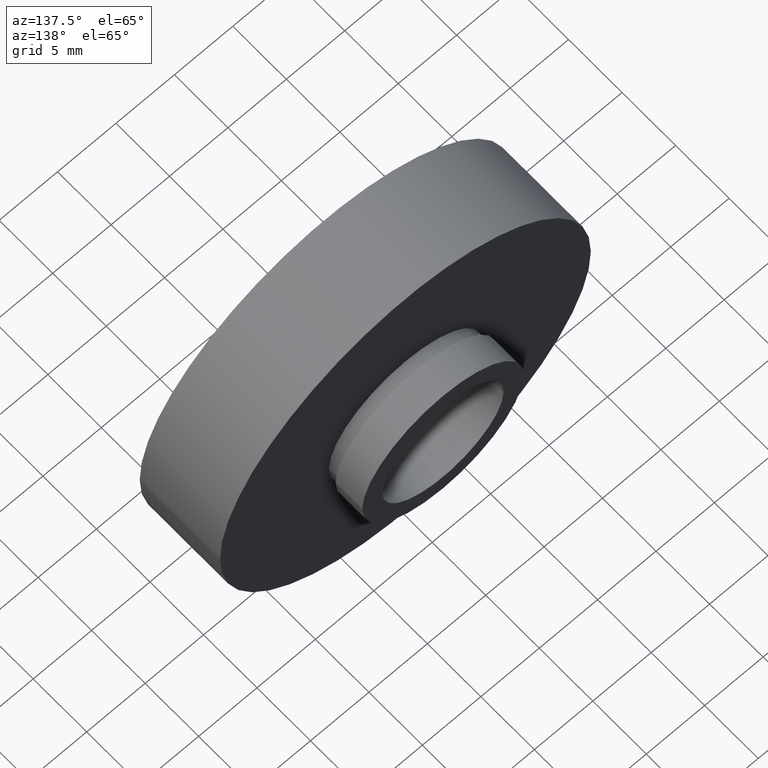
[diagram: clean part render]
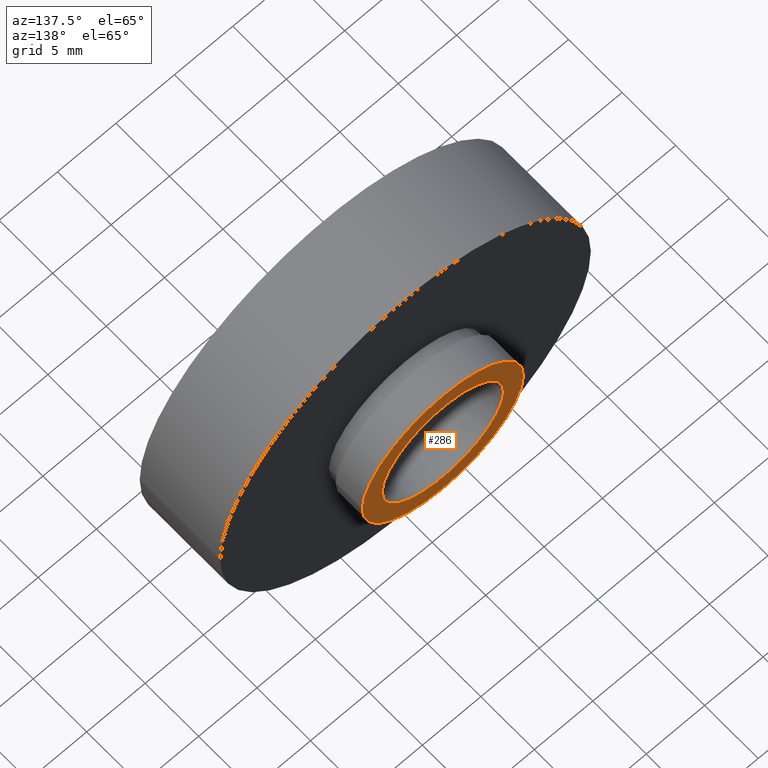
[diagram: same view with one face highlighted and labeled with its STEP entity id]
A machine part, auxiliary view. The second image highlights one B-rep face of the part: STEP entity #286.
In plain terms, the highlighted planar face has unit normal (0, -1, 0).
Its self-contained STEP definition (entity closure, byte-faithful):
#4 = CARTESIAN_POINT ( 'NONE',  ( 7.208293393765501500E-016, 10.99999999999999600, 0.0000000000000000000 ) ) ;
#16 = CARTESIAN_POINT ( 'NONE',  ( -5.200000000000000200, 11.00000000000000000, 0.0000000000000000000 ) ) ;
#31 = FACE_OUTER_BOUND ( 'NONE', #416, .T. ) ;
#53 = EDGE_LOOP ( 'NONE', ( #105, #65 ) ) ;
#65 = ORIENTED_EDGE ( 'NONE', *, *, #579, .F. ) ;
#68 = AXIS2_PLACEMENT_3D ( 'NONE', #397, #290, #578 ) ;
#84 = AXIS2_PLACEMENT_3D ( 'NONE', #363, #509, #219 ) ;
#85 = DIRECTION ( 'NONE',  ( 1.224646799147351000E-016, -1.000000000000000000, 0.0000000000000000000 ) ) ;
#105 = ORIENTED_EDGE ( 'NONE', *, *, #234, .F. ) ;
#119 = FACE_BOUND ( 'NONE', #53, .T. ) ;
#137 = EDGE_CURVE ( 'NONE', #360, #387, #141, .T. ) ;
#141 = CIRCLE ( 'NONE', #474, 6.900000000000001200 ) ;
#151 = DIRECTION ( 'NONE',  ( -1.000000000000000000, 0.0000000000000000000, 0.0000000000000000000 ) ) ;
#165 = AXIS2_PLACEMENT_3D ( 'NONE', #226, #85, #422 ) ;
#202 = DIRECTION ( 'NONE',  ( -1.224646799147351000E-016, 1.000000000000000000, -0.0000000000000000000 ) ) ;
#219 = DIRECTION ( 'NONE',  ( -1.000000000000000000, 0.0000000000000000000, 0.0000000000000000000 ) ) ;
#226 = CARTESIAN_POINT ( 'NONE',  ( 5.200000000000001100, 11.00000000000000000, 0.0000000000000000000 ) ) ;
#230 = VERTEX_POINT ( 'NONE', #547 ) ;
#234 = EDGE_CURVE ( 'NONE', #256, #230, #495, .T. ) ;
#245 = CARTESIAN_POINT ( 'NONE',  ( 7.208293393765501500E-016, 10.99999999999999600, 0.0000000000000000000 ) ) ;
#256 = VERTEX_POINT ( 'NONE', #16 ) ;
#286 = ADVANCED_FACE ( 'NONE', ( #119, #31 ), #414, .F. ) ;
#290 = DIRECTION ( 'NONE',  ( -1.224646799147351000E-016, 1.000000000000000000, -0.0000000000000000000 ) ) ;
#346 = AXIS2_PLACEMENT_3D ( 'NONE', #245, #624, #151 ) ;
#347 = DIRECTION ( 'NONE',  ( -1.000000000000000000, 0.0000000000000000000, 0.0000000000000000000 ) ) ;
#360 = VERTEX_POINT ( 'NONE', #610 ) ;
#363 = CARTESIAN_POINT ( 'NONE',  ( 7.208293393765498600E-016, 11.00000000000000000, 0.0000000000000000000 ) ) ;
#387 = VERTEX_POINT ( 'NONE', #516 ) ;
#397 = CARTESIAN_POINT ( 'NONE',  ( 7.208293393765498600E-016, 11.00000000000000000, 0.0000000000000000000 ) ) ;
#408 = ORIENTED_EDGE ( 'NONE', *, *, #137, .T. ) ;
#414 = PLANE ( 'NONE',  #165 ) ;
#416 = EDGE_LOOP ( 'NONE', ( #453, #408 ) ) ;
#422 = DIRECTION ( 'NONE',  ( 1.000000000000000000, 1.224646799147351000E-016, 0.0000000000000000000 ) ) ;
#453 = ORIENTED_EDGE ( 'NONE', *, *, #608, .T. ) ;
#474 = AXIS2_PLACEMENT_3D ( 'NONE', #4, #202, #347 ) ;
#495 = CIRCLE ( 'NONE', #84, 5.200000000000001100 ) ;
#509 = DIRECTION ( 'NONE',  ( -1.224646799147351000E-016, 1.000000000000000000, -0.0000000000000000000 ) ) ;
#516 = CARTESIAN_POINT ( 'NONE',  ( -6.900000000000000400, 10.99999999999999600, 0.0000000000000000000 ) ) ;
#523 = CIRCLE ( 'NONE', #346, 6.900000000000001200 ) ;
#547 = CARTESIAN_POINT ( 'NONE',  ( 5.200000000000001100, 11.00000000000000000, 6.368163355566236400E-016 ) ) ;
#561 = CIRCLE ( 'NONE', #68, 5.200000000000001100 ) ;
#578 = DIRECTION ( 'NONE',  ( -1.000000000000000000, 0.0000000000000000000, 0.0000000000000000000 ) ) ;
#579 = EDGE_CURVE ( 'NONE', #230, #256, #561, .T. ) ;
#608 = EDGE_CURVE ( 'NONE', #387, #360, #523, .T. ) ;
#610 = CARTESIAN_POINT ( 'NONE',  ( 6.900000000000002100, 10.99999999999999600, 8.450062914116738600E-016 ) ) ;
#624 = DIRECTION ( 'NONE',  ( -1.224646799147351000E-016, 1.000000000000000000, -0.0000000000000000000 ) ) ;